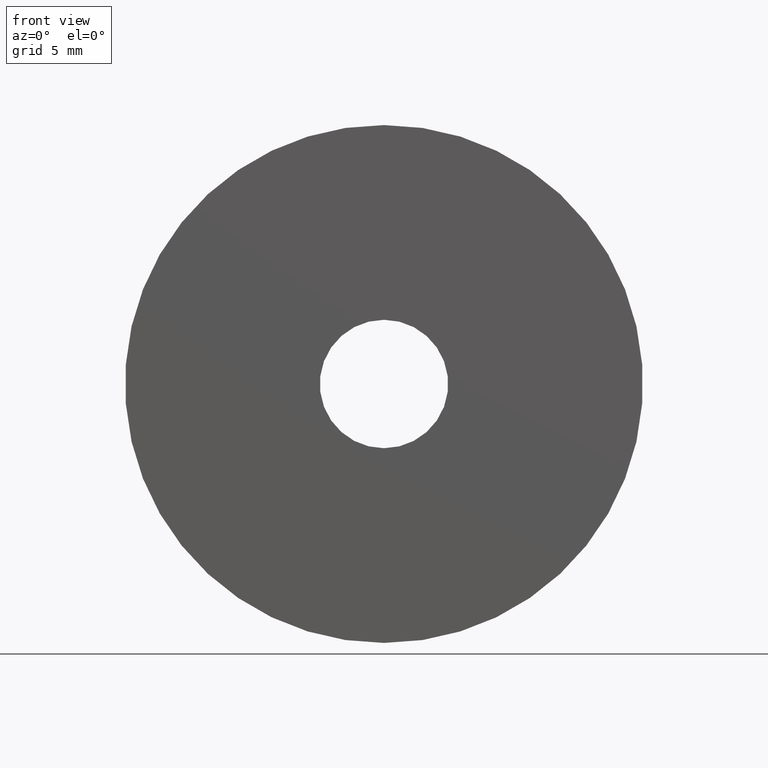
[diagram: clean part render]
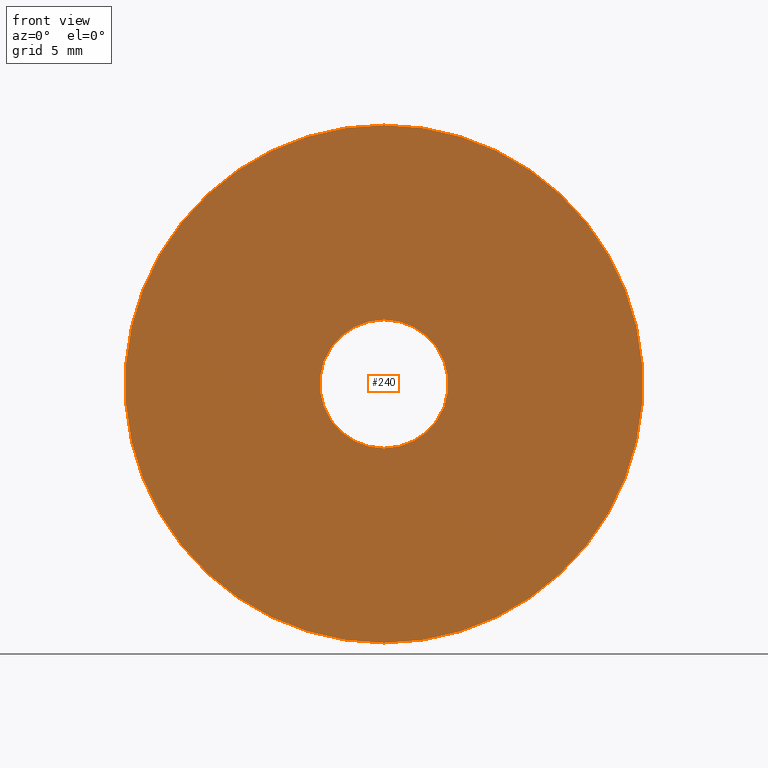
[diagram: same view with one face highlighted and labeled with its STEP entity id]
A machine part, front view. The second image highlights one B-rep face of the part: STEP entity #240.
In plain terms, the highlighted planar face has unit normal (0, 1, 0).
Its self-contained STEP definition (entity closure, byte-faithful):
#1 = VERTEX_POINT ( 'NONE', #21 ) ;
#3 = AXIS2_PLACEMENT_3D ( 'NONE', #122, #217, #196 ) ;
#4 = AXIS2_PLACEMENT_3D ( 'NONE', #140, #214, #83 ) ;
#9 = DIRECTION ( 'NONE',  ( 0.000000000000000000, 1.000000000000000000, 0.000000000000000000 ) ) ;
#16 = CARTESIAN_POINT ( 'NONE',  ( 0.000000000000000000, -0.2000000000000000111, 0.000000000000000000 ) ) ;
#21 = CARTESIAN_POINT ( 'NONE',  ( 0.000000000000000000, -0.2000000000000000111, 3.100000000000000089 ) ) ;
#22 = CIRCLE ( 'NONE', #4, 12.50000000000000000 ) ;
#25 = EDGE_CURVE ( 'NONE', #151, #1, #33, .T. ) ;
#27 = AXIS2_PLACEMENT_3D ( 'NONE', #16, #112, #189 ) ;
#28 = PLANE ( 'NONE',  #101 ) ;
#29 = FACE_OUTER_BOUND ( 'NONE', #171, .T. ) ;
#33 = CIRCLE ( 'NONE', #27, 3.100000000000000089 ) ;
#61 = DIRECTION ( 'NONE',  ( 0.000000000000000000, 0.000000000000000000, 1.000000000000000000 ) ) ;
#83 = DIRECTION ( 'NONE',  ( 0.000000000000000000, 0.000000000000000000, 1.000000000000000000 ) ) ;
#84 = DIRECTION ( 'NONE',  ( 0.000000000000000000, 1.000000000000000000, 0.000000000000000000 ) ) ;
#88 = EDGE_CURVE ( 'NONE', #247, #227, #22, .T. ) ;
#94 = ORIENTED_EDGE ( 'NONE', *, *, #25, .T. ) ;
#101 = AXIS2_PLACEMENT_3D ( 'NONE', #103, #84, #104 ) ;
#102 = CIRCLE ( 'NONE', #3, 3.100000000000000089 ) ;
#103 = CARTESIAN_POINT ( 'NONE',  ( 0.000000000000000000, -0.2000000000000000111, 0.000000000000000000 ) ) ;
#104 = DIRECTION ( 'NONE',  ( 0.000000000000000000, -0.000000000000000000, 1.000000000000000000 ) ) ;
#110 = ORIENTED_EDGE ( 'NONE', *, *, #88, .F. ) ;
#112 = DIRECTION ( 'NONE',  ( 0.000000000000000000, 1.000000000000000000, 0.000000000000000000 ) ) ;
#115 = ORIENTED_EDGE ( 'NONE', *, *, #221, .F. ) ;
#117 = CIRCLE ( 'NONE', #173, 12.50000000000000000 ) ;
#122 = CARTESIAN_POINT ( 'NONE',  ( 0.000000000000000000, -0.2000000000000000111, 0.000000000000000000 ) ) ;
#123 = CARTESIAN_POINT ( 'NONE',  ( 0.000000000000000000, -0.2000000000000000111, 0.000000000000000000 ) ) ;
#124 = FACE_BOUND ( 'NONE', #204, .T. ) ;
#126 = EDGE_CURVE ( 'NONE', #1, #151, #102, .T. ) ;
#136 = ORIENTED_EDGE ( 'NONE', *, *, #126, .T. ) ;
#140 = CARTESIAN_POINT ( 'NONE',  ( 0.000000000000000000, -0.2000000000000000111, 0.000000000000000000 ) ) ;
#151 = VERTEX_POINT ( 'NONE', #183 ) ;
#164 = CARTESIAN_POINT ( 'NONE',  ( 1.530808498934191521E-15, -0.2000000000000000111, 12.50000000000000000 ) ) ;
#171 = EDGE_LOOP ( 'NONE', ( #110, #115 ) ) ;
#173 = AXIS2_PLACEMENT_3D ( 'NONE', #123, #9, #61 ) ;
#183 = CARTESIAN_POINT ( 'NONE',  ( 3.796405077356794918E-16, -0.2000000000000000111, -3.100000000000000089 ) ) ;
#189 = DIRECTION ( 'NONE',  ( 0.000000000000000000, 0.000000000000000000, 1.000000000000000000 ) ) ;
#196 = DIRECTION ( 'NONE',  ( 0.000000000000000000, 0.000000000000000000, 1.000000000000000000 ) ) ;
#204 = EDGE_LOOP ( 'NONE', ( #136, #94 ) ) ;
#214 = DIRECTION ( 'NONE',  ( 0.000000000000000000, 1.000000000000000000, 0.000000000000000000 ) ) ;
#217 = DIRECTION ( 'NONE',  ( 0.000000000000000000, 1.000000000000000000, 0.000000000000000000 ) ) ;
#221 = EDGE_CURVE ( 'NONE', #227, #247, #117, .T. ) ;
#227 = VERTEX_POINT ( 'NONE', #164 ) ;
#238 = CARTESIAN_POINT ( 'NONE',  ( 0.000000000000000000, -0.2000000000000000111, -12.50000000000000000 ) ) ;
#240 = ADVANCED_FACE ( 'NONE', ( #124, #29 ), #28, .F. ) ;
#247 = VERTEX_POINT ( 'NONE', #238 ) ;